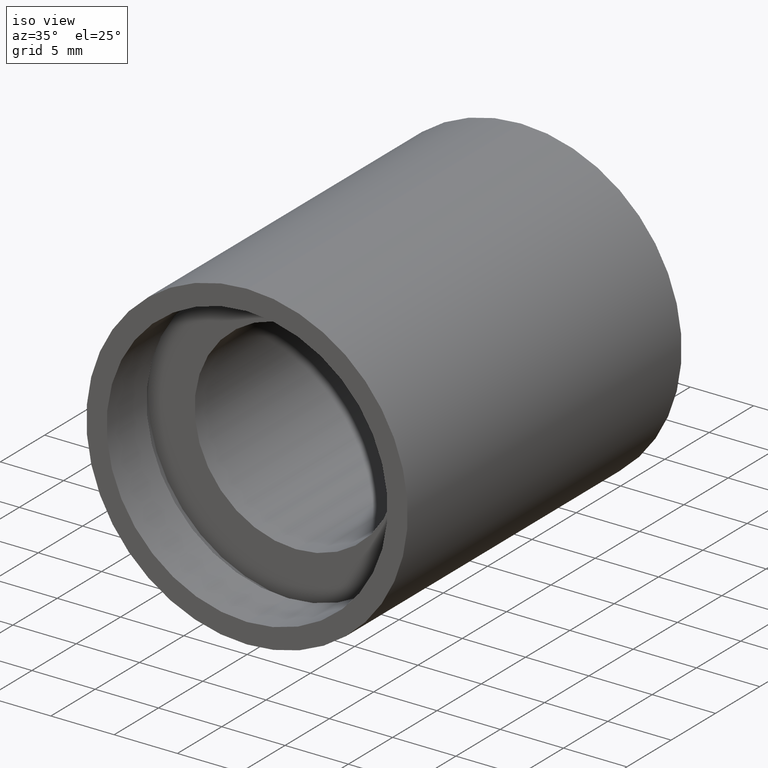
[diagram: clean part render]
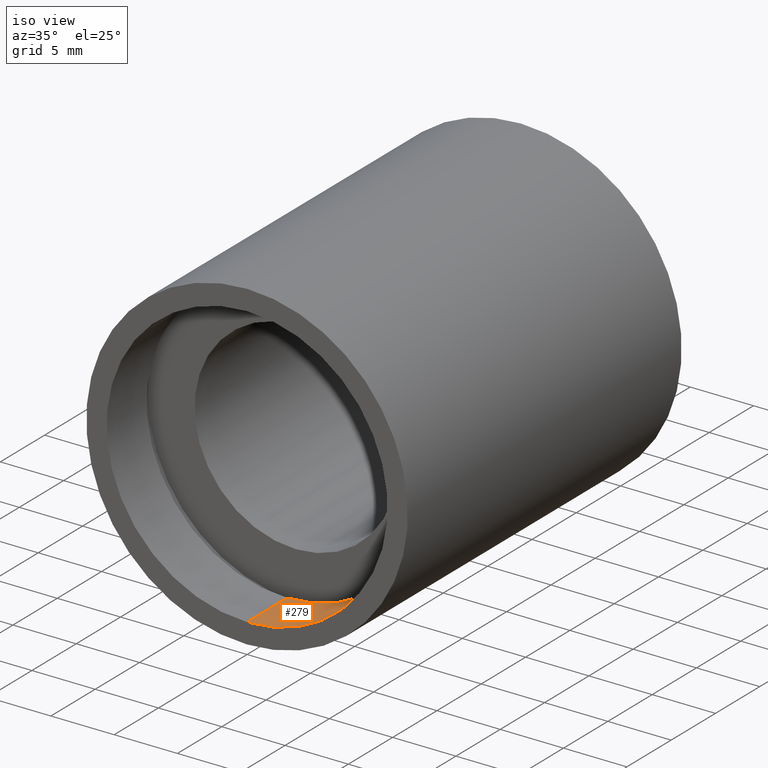
[diagram: same view with one face highlighted and labeled with its STEP entity id]
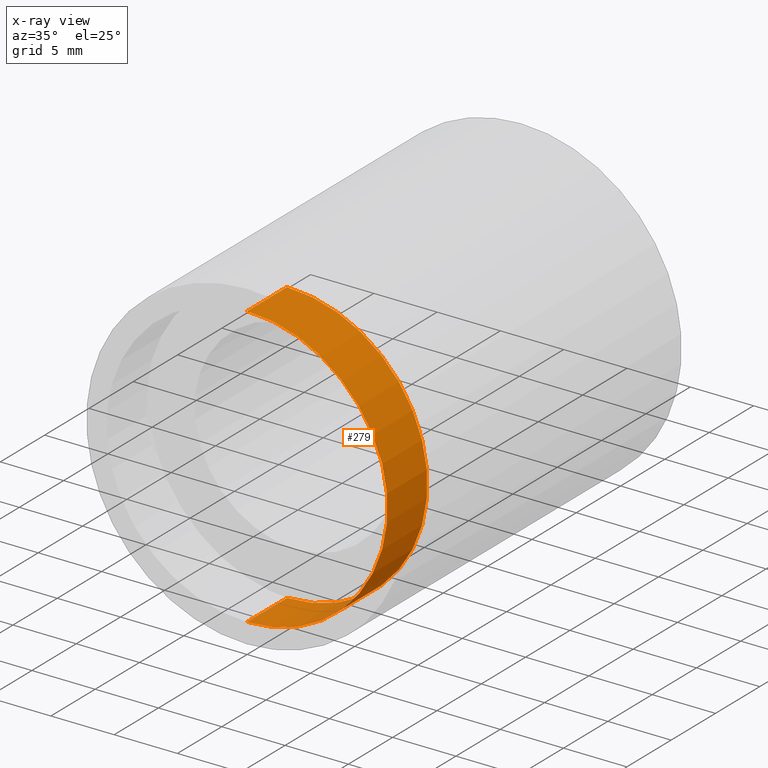
[diagram: x-ray of the same camera — body ghosted, the highlighted face saturated]
A machine part, iso view. The second image highlights one B-rep face of the part: STEP entity #279.
The next image is the same camera in x-ray: the body ghosted, the highlighted face saturated — about 0% of this face is hidden behind the body in this view.
In plain terms, the highlighted cylindrical surface (partial cylindrical patch) has radius 11.1 mm, axis along (-0, 1, -0).
Its self-contained STEP definition (entity closure, byte-faithful):
#12 = DIRECTION ( 'NONE',  ( -0.0000000000000000000, 1.000000000000000000, -0.0000000000000000000 ) ) ;
#19 = ORIENTED_EDGE ( 'NONE', *, *, #172, .T. ) ;
#63 = VECTOR ( 'NONE', #91, 1000.000000000000000 ) ;
#68 = VERTEX_POINT ( 'NONE', #478 ) ;
#75 = ORIENTED_EDGE ( 'NONE', *, *, #558, .F. ) ;
#80 = CARTESIAN_POINT ( 'NONE',  ( 0.0000000000000000000, -2.775557561562891400E-014, 0.0000000000000000000 ) ) ;
#86 = DIRECTION ( 'NONE',  ( 0.0000000000000000000, 0.0000000000000000000, 1.000000000000000000 ) ) ;
#91 = DIRECTION ( 'NONE',  ( -0.0000000000000000000, 1.000000000000000000, -0.0000000000000000000 ) ) ;
#125 = CARTESIAN_POINT ( 'NONE',  ( 1.359357947053564500E-015, 161.3761669434274500, -11.10000000000002100 ) ) ;
#126 = CARTESIAN_POINT ( 'NONE',  ( 0.0000000000000000000, 161.3761669434274500, 11.10000000000002100 ) ) ;
#155 = DIRECTION ( 'NONE',  ( 0.0000000000000000000, 0.0000000000000000000, 1.000000000000000000 ) ) ;
#158 = VECTOR ( 'NONE', #379, 1000.000000000000000 ) ;
#162 = DIRECTION ( 'NONE',  ( -0.0000000000000000000, 1.000000000000000000, -0.0000000000000000000 ) ) ;
#163 = AXIS2_PLACEMENT_3D ( 'NONE', #80, #576, #86 ) ;
#168 = EDGE_LOOP ( 'NONE', ( #75, #258, #557, #19 ) ) ;
#172 = EDGE_CURVE ( 'NONE', #535, #68, #407, .T. ) ;
#178 = CIRCLE ( 'NONE', #163, 11.10000000000002300 ) ;
#180 = CARTESIAN_POINT ( 'NONE',  ( 0.0000000000000000000, -2.775557561562891400E-014, 11.10000000000002300 ) ) ;
#258 = ORIENTED_EDGE ( 'NONE', *, *, #491, .F. ) ;
#274 = LINE ( 'NONE', #125, #158 ) ;
#279 = ADVANCED_FACE ( 'NONE', ( #385 ), #331, .F. ) ;
#331 = CYLINDRICAL_SURFACE ( 'NONE', #521, 11.10000000000002100 ) ;
#336 = VERTEX_POINT ( 'NONE', #364 ) ;
#359 = CARTESIAN_POINT ( 'NONE',  ( 0.0000000000000000000, 161.3761669434274500, 0.0000000000000000000 ) ) ;
#364 = CARTESIAN_POINT ( 'NONE',  ( 1.359357947053564900E-015, -2.775557561562891400E-014, -11.10000000000002300 ) ) ;
#379 = DIRECTION ( 'NONE',  ( -0.0000000000000000000, 1.000000000000000000, -0.0000000000000000000 ) ) ;
#385 = FACE_OUTER_BOUND ( 'NONE', #168, .T. ) ;
#407 = CIRCLE ( 'NONE', #474, 11.10000000000001900 ) ;
#454 = DIRECTION ( 'NONE',  ( 0.0000000000000000000, 0.0000000000000000000, 1.000000000000000000 ) ) ;
#474 = AXIS2_PLACEMENT_3D ( 'NONE', #593, #12, #155 ) ;
#475 = CARTESIAN_POINT ( 'NONE',  ( 0.0000000000000000000, 4.499999999999976000, 11.10000000000001900 ) ) ;
#478 = CARTESIAN_POINT ( 'NONE',  ( 1.359357947053564500E-015, 4.499999999999976000, -11.10000000000001900 ) ) ;
#491 = EDGE_CURVE ( 'NONE', #515, #336, #178, .T. ) ;
#511 = LINE ( 'NONE', #126, #63 ) ;
#515 = VERTEX_POINT ( 'NONE', #180 ) ;
#521 = AXIS2_PLACEMENT_3D ( 'NONE', #359, #162, #454 ) ;
#535 = VERTEX_POINT ( 'NONE', #475 ) ;
#557 = ORIENTED_EDGE ( 'NONE', *, *, #592, .T. ) ;
#558 = EDGE_CURVE ( 'NONE', #336, #68, #274, .T. ) ;
#576 = DIRECTION ( 'NONE',  ( -0.0000000000000000000, 1.000000000000000000, -0.0000000000000000000 ) ) ;
#592 = EDGE_CURVE ( 'NONE', #515, #535, #511, .T. ) ;
#593 = CARTESIAN_POINT ( 'NONE',  ( 0.0000000000000000000, 4.499999999999976000, 0.0000000000000000000 ) ) ;